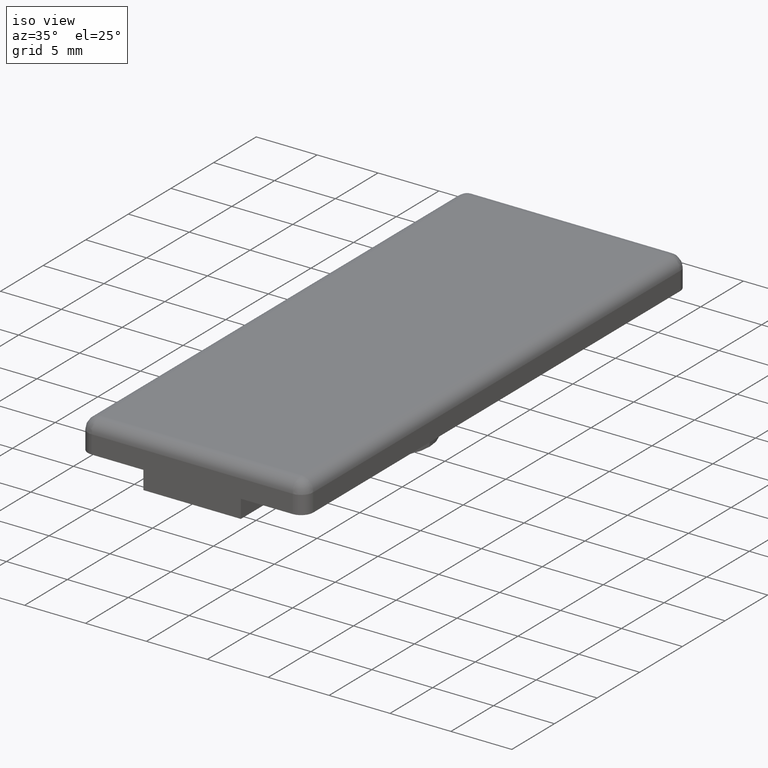
[diagram: clean part render]
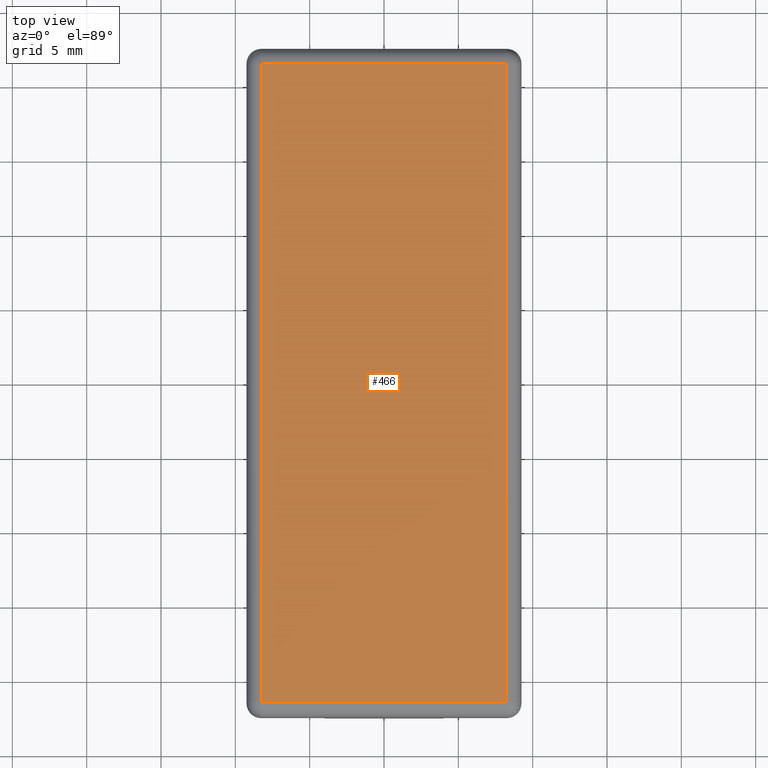
[diagram: tour spotlight — one face highlighted and labeled with its STEP entity id]
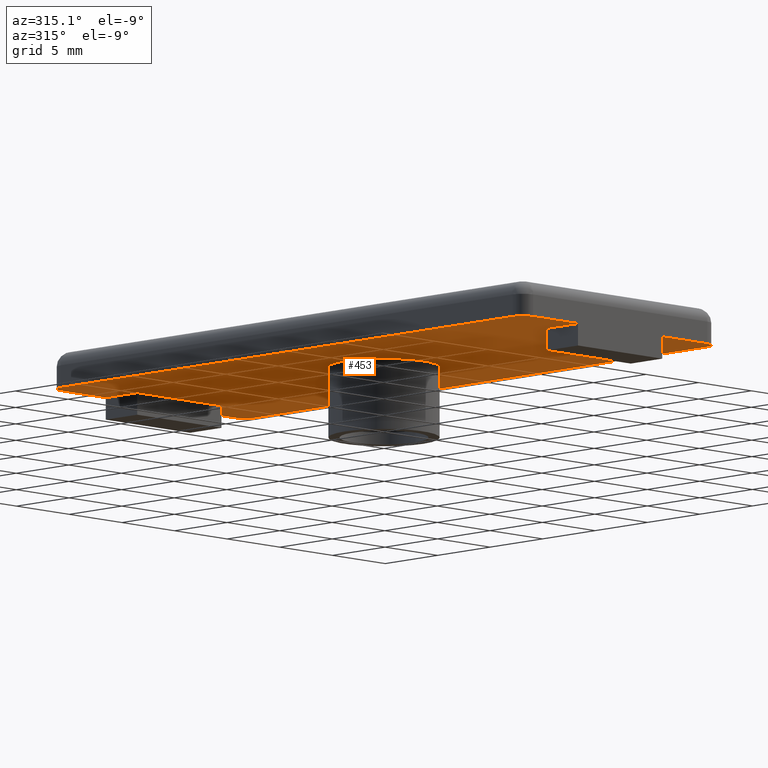
[diagram: tour spotlight — one face highlighted and labeled with its STEP entity id]
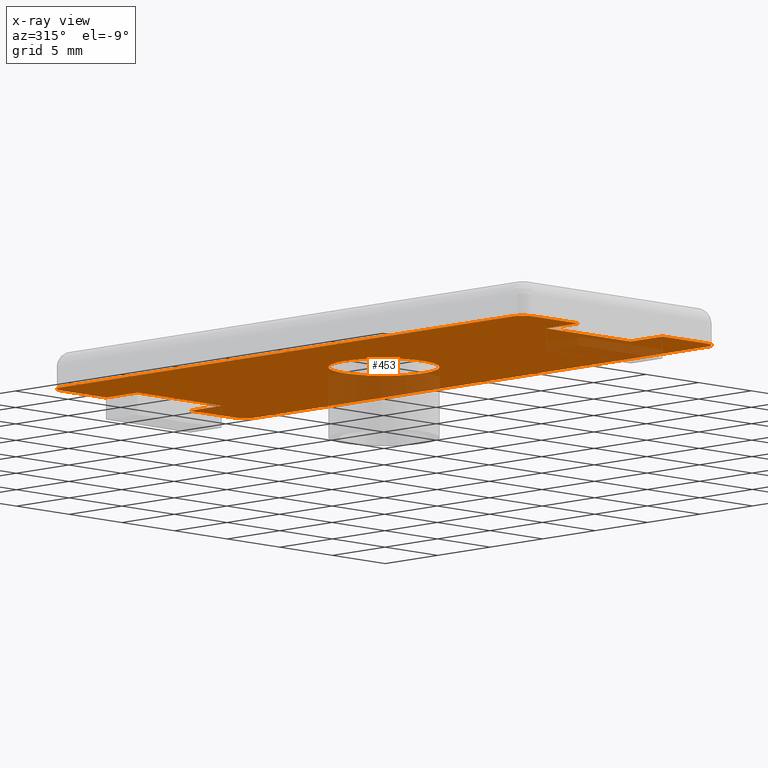
[diagram: x-ray of the same camera — body ghosted, this tour face saturated]
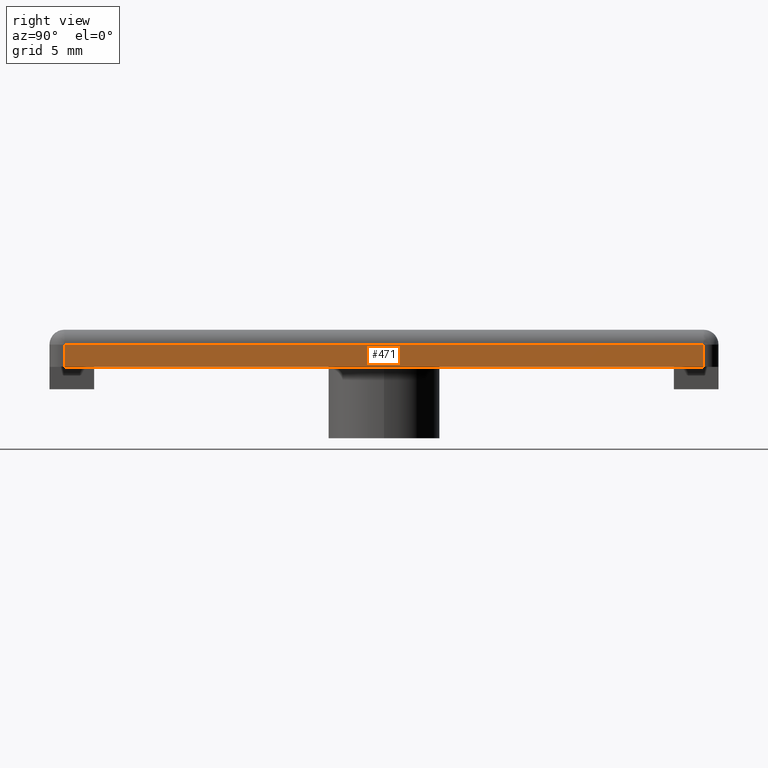
[diagram: tour spotlight — one face highlighted and labeled with its STEP entity id]
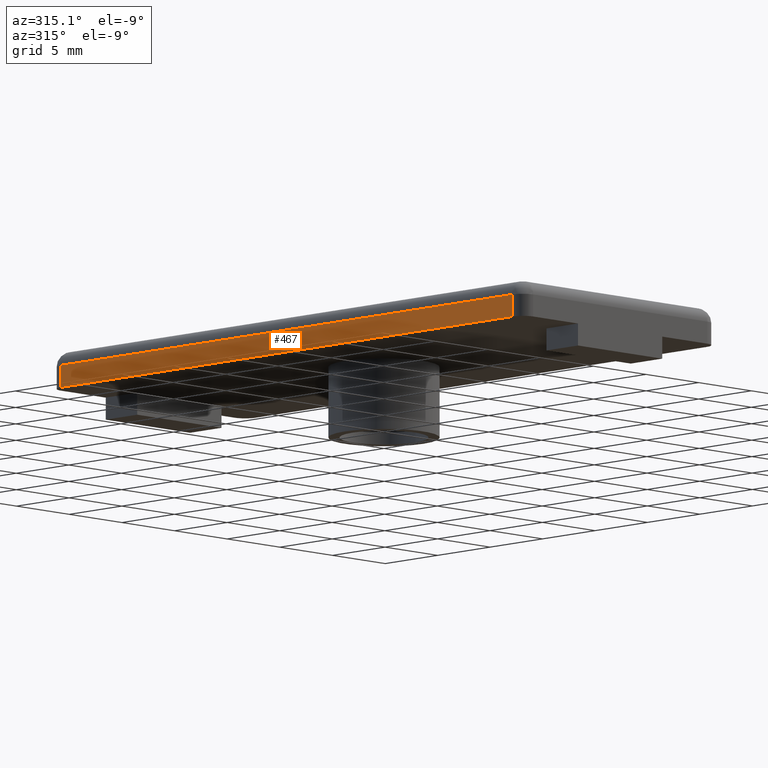
[diagram: tour spotlight — one face highlighted and labeled with its STEP entity id]
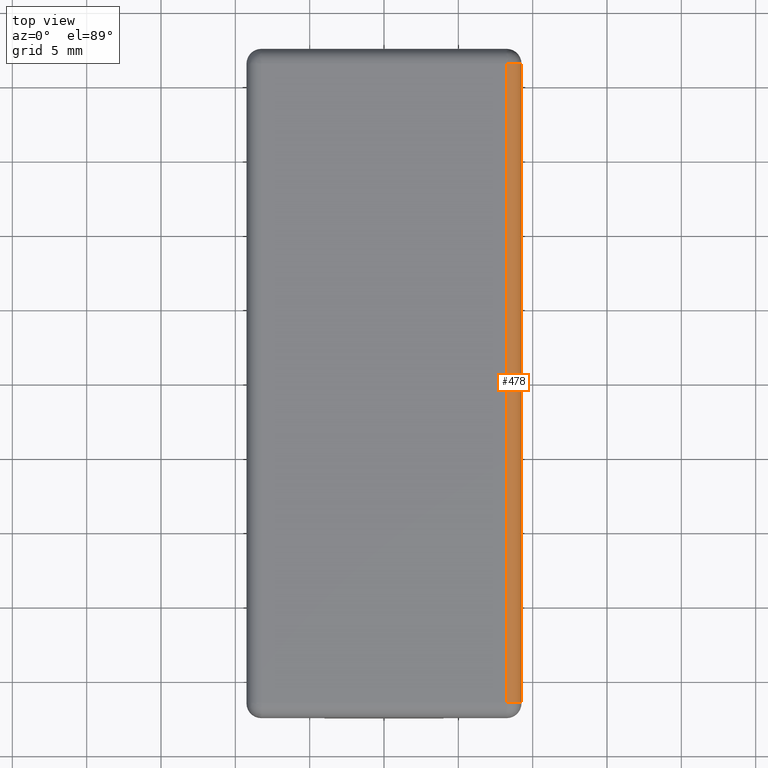
[diagram: tour spotlight — one face highlighted and labeled with its STEP entity id]
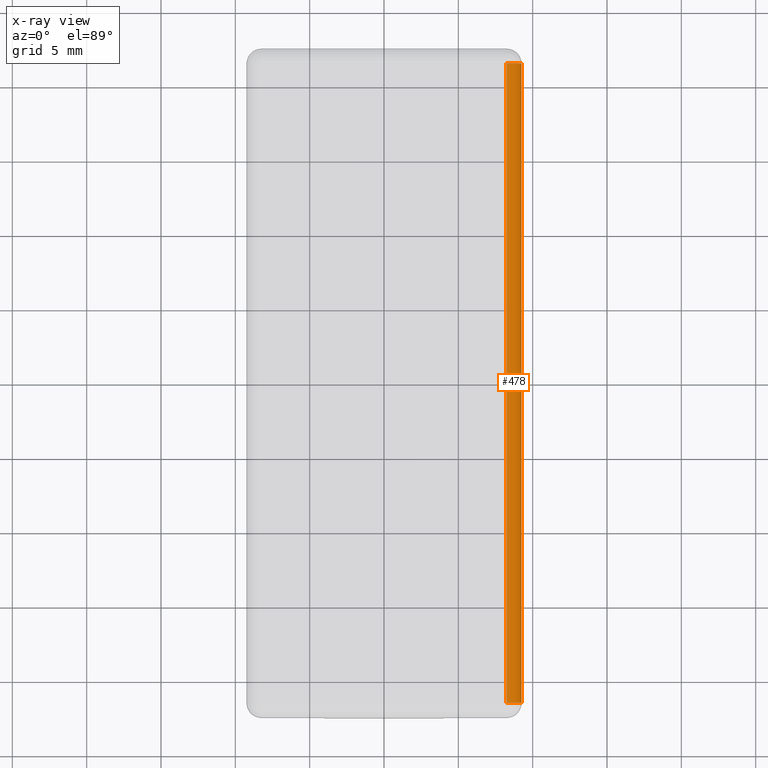
[diagram: x-ray of the same camera — body ghosted, this tour face saturated]
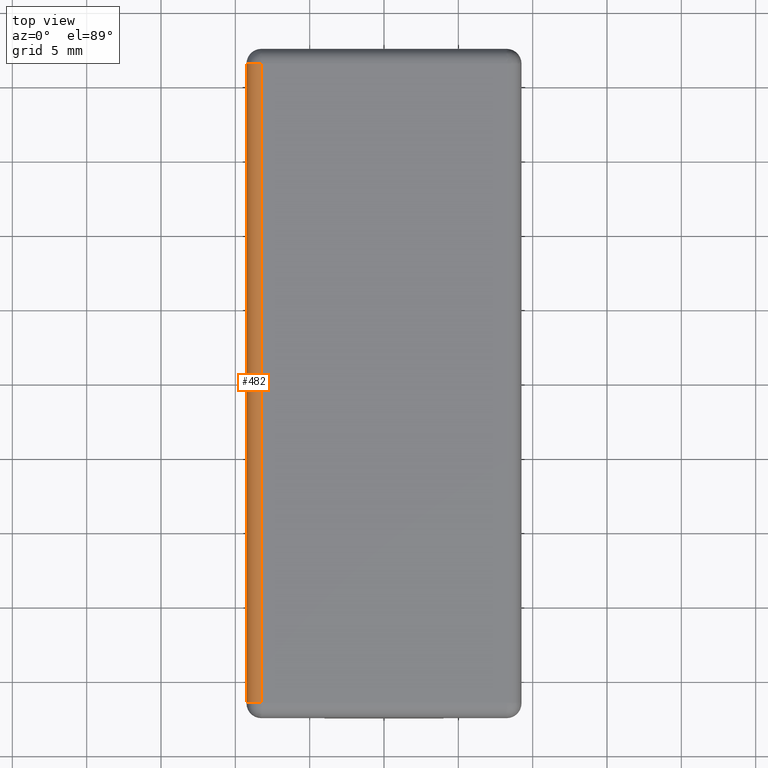
[diagram: tour spotlight — one face highlighted and labeled with its STEP entity id]
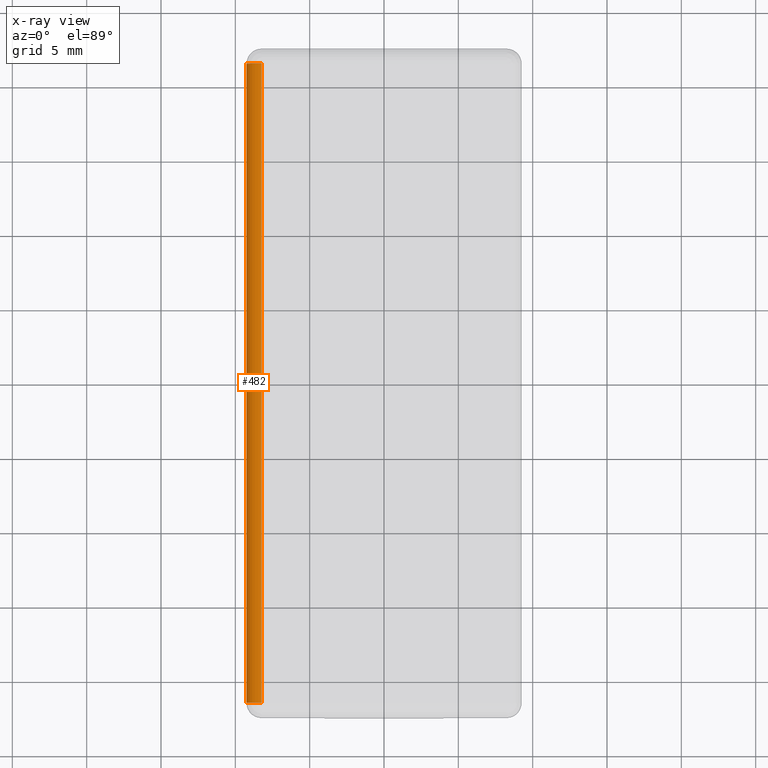
[diagram: x-ray of the same camera — body ghosted, this tour face saturated]
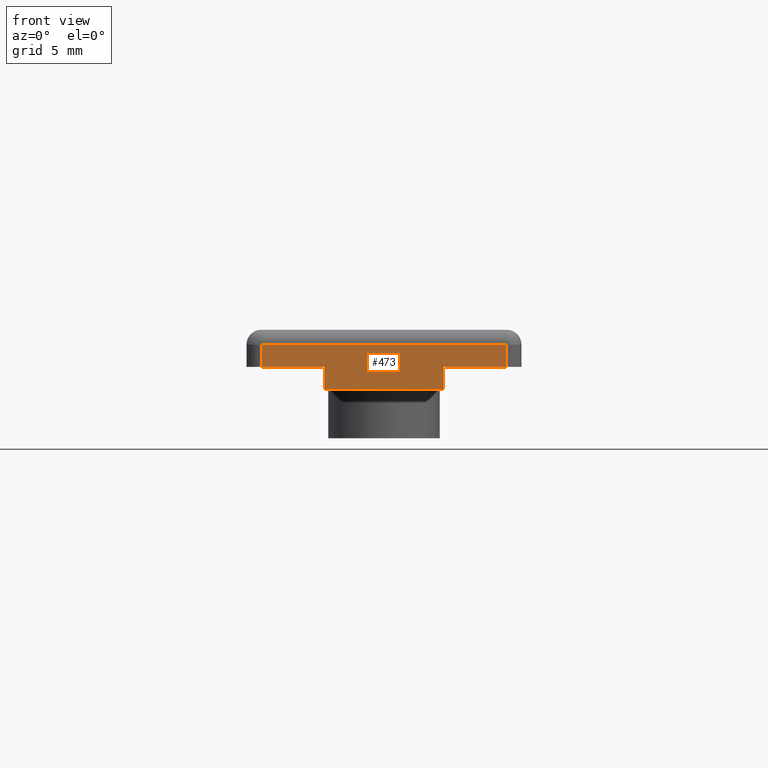
[diagram: tour spotlight — one face highlighted and labeled with its STEP entity id]
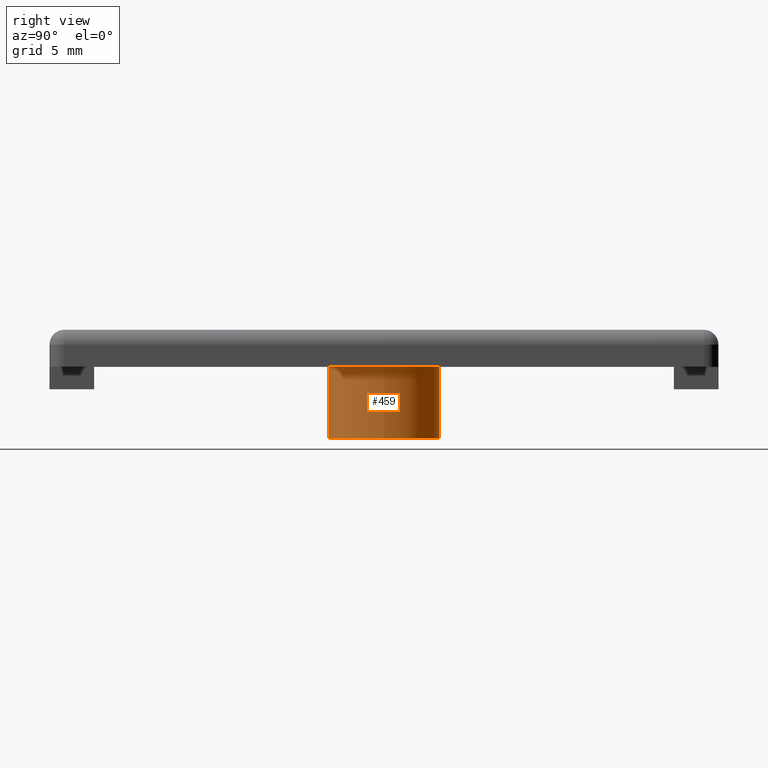
[diagram: tour spotlight — one face highlighted and labeled with its STEP entity id]
A machine part: a face-by-face anatomy tour. The part has 30 B-rep faces; the first image is the clean iso view, then the 8 largest visible faces are spotlighted one at a time (largest first), each with its STEP entity span.

Face 1 — top view, entity #466. In plain terms, the highlighted planar face has unit normal (0, 0, -1).
Definition (entity closure, byte-faithful):
#46=FACE_OUTER_BOUND('',#80,.T.);
#80=EDGE_LOOP('',(#365,#366,#367,#368));
#125=LINE('',#750,#169);
#126=LINE('',#752,#170);
#127=LINE('',#754,#171);
#128=LINE('',#755,#172);
#169=VECTOR('',#605,42.999999999824);
#170=VECTOR('',#606,16.4999999999304);
#171=VECTOR('',#607,42.999999999824);
#172=VECTOR('',#608,16.4999999999341);
#233=VERTEX_POINT('',#748);
#234=VERTEX_POINT('',#749);
#235=VERTEX_POINT('',#751);
#236=VERTEX_POINT('',#753);
#281=EDGE_CURVE('',#233,#234,#125,.T.);
#282=EDGE_CURVE('',#235,#233,#126,.T.);
#283=EDGE_CURVE('',#236,#235,#127,.T.);
#284=EDGE_CURVE('',#234,#236,#128,.T.);
#365=ORIENTED_EDGE('',*,*,#281,.F.);
#366=ORIENTED_EDGE('',*,*,#282,.F.);
#367=ORIENTED_EDGE('',*,*,#283,.F.);
#368=ORIENTED_EDGE('',*,*,#284,.F.);
#448=PLANE('',#506);
#466=ADVANCED_FACE('',(#46),#448,.F.);
#506=AXIS2_PLACEMENT_3D('',#747,#603,#604);
#603=DIRECTION('center_axis',(0.,0.,-1.));
#604=DIRECTION('ref_axis',(-1.,0.,0.));
#605=DIRECTION('',(0.,-1.,0.));
#606=DIRECTION('',(1.,0.,0.));
#607=DIRECTION('',(0.,1.,0.));
#608=DIRECTION('',(-1.,0.,0.));
#747=CARTESIAN_POINT('Origin',(11.1000047315933,-27.0000047315743,2.5));
#748=CARTESIAN_POINT('',(8.24999999996317,21.4999999999141,2.5));
#749=CARTESIAN_POINT('',(8.2499999999668,-21.49999999991,2.5));
#750=CARTESIAN_POINT('',(8.24999999996317,21.4999999999141,2.5));
#751=CARTESIAN_POINT('',(-8.24999999996726,21.49999999991,2.5));
#752=CARTESIAN_POINT('',(-8.24999999996726,21.49999999991,2.5));
#753=CARTESIAN_POINT('',(-8.24999999996726,-21.4999999999141,2.5));
#754=CARTESIAN_POINT('',(-8.24999999996317,-21.4999999999141,2.5));
#755=CARTESIAN_POINT('',(8.2499999999668,-21.49999999991,2.5));

Face 2 — auxiliary view, entity #453. An x-ray twin of the same camera follows (body ghosted, this face saturated) — the face is partly hidden behind the body. In plain terms, the highlighted planar face has unit normal (0, 0, -1).
Definition (entity closure, byte-faithful):
#29=FACE_BOUND('',#64,.T.);
#33=FACE_OUTER_BOUND('',#63,.T.);
#63=EDGE_LOOP('',(#309,#310,#311,#312,#313,#314,#315,#316,#317,#318,#319,
#320,#321,#322,#323,#324));
#64=EDGE_LOOP('',(#325));
#97=LINE('',#675,#141);
#98=LINE('',#677,#142);
#99=LINE('',#679,#143);
#100=LINE('',#681,#144);
#101=LINE('',#683,#145);
#102=LINE('',#687,#146);
#103=LINE('',#691,#147);
#104=LINE('',#693,#148);
#105=LINE('',#695,#149);
#106=LINE('',#697,#150);
#107=LINE('',#699,#151);
#108=LINE('',#702,#152);
#141=VECTOR('',#537,4.24999999998272);
#142=VECTOR('',#538,2.99999999998818);
#143=VECTOR('',#539,7.99999999996817);
#144=VECTOR('',#540,2.99999999998818);
#145=VECTOR('',#541,4.24999999998317);
#146=VECTOR('',#544,42.9999999998281);
#147=VECTOR('',#547,4.24999999998317);
#148=VECTOR('',#548,2.99999999998771);
#149=VECTOR('',#549,7.99999999996817);
#150=VECTOR('',#550,2.99999999998771);
#151=VECTOR('',#551,4.24999999998272);
#152=VECTOR('',#554,42.9999999998281);
#185=CIRCLE('',#486,0.999999999996);
#186=CIRCLE('',#487,0.999999999996);
#187=CIRCLE('',#488,0.999999999996);
#188=CIRCLE('',#489,0.999999999996);
#189=CIRCLE('',#490,3.749999999985);
#205=VERTEX_POINT('',#671);
#206=VERTEX_POINT('',#672);
#207=VERTEX_POINT('',#674);
#208=VERTEX_POINT('',#676);
#209=VERTEX_POINT('',#678);
#210=VERTEX_POINT('',#680);
#211=VERTEX_POINT('',#682);
#212=VERTEX_POINT('',#684);
#213=VERTEX_POINT('',#686);
#214=VERTEX_POINT('',#688);
#215=VERTEX_POINT('',#690);
#216=VERTEX_POINT('',#692);
#217=VERTEX_POINT('',#694);
#218=VERTEX_POINT('',#696);
#219=VERTEX_POINT('',#698);
#220=VERTEX_POINT('',#700);
#221=VERTEX_POINT('',#703);
#245=EDGE_CURVE('',#205,#206,#185,.T.);
#246=EDGE_CURVE('',#206,#207,#97,.T.);
#247=EDGE_CURVE('',#208,#207,#98,.T.);
#248=EDGE_CURVE('',#209,#208,#99,.T.);
#249=EDGE_CURVE('',#210,#209,#100,.T.);
#250=EDGE_CURVE('',#210,#211,#101,.T.);
#251=EDGE_CURVE('',#211,#212,#186,.T.);
#252=EDGE_CURVE('',#212,#213,#102,.T.);
#253=EDGE_CURVE('',#213,#214,#187,.T.);
#254=EDGE_CURVE('',#214,#215,#103,.T.);
#255=EDGE_CURVE('',#216,#215,#104,.T.);
#256=EDGE_CURVE('',#217,#216,#105,.T.);
#257=EDGE_CURVE('',#218,#217,#106,.T.);
#258=EDGE_CURVE('',#218,#219,#107,.T.);
#259=EDGE_CURVE('',#219,#220,#188,.T.);
#260=EDGE_CURVE('',#220,#205,#108,.T.);
#261=EDGE_CURVE('',#221,#221,#189,.T.);
#309=ORIENTED_EDGE('',*,*,#245,.T.);
#310=ORIENTED_EDGE('',*,*,#246,.T.);
#311=ORIENTED_EDGE('',*,*,#247,.F.);
#312=ORIENTED_EDGE('',*,*,#248,.F.);
#313=ORIENTED_EDGE('',*,*,#249,.F.);
#314=ORIENTED_EDGE('',*,*,#250,.T.);
#315=ORIENTED_EDGE('',*,*,#251,.T.);
#316=ORIENTED_EDGE('',*,*,#252,.T.);
#317=ORIENTED_EDGE('',*,*,#253,.T.);
#318=ORIENTED_EDGE('',*,*,#254,.T.);
#319=ORIENTED_EDGE('',*,*,#255,.F.);
#320=ORIENTED_EDGE('',*,*,#256,.F.);
#321=ORIENTED_EDGE('',*,*,#257,.F.);
#322=ORIENTED_EDGE('',*,*,#258,.T.);
#323=ORIENTED_EDGE('',*,*,#259,.T.);
#324=ORIENTED_EDGE('',*,*,#260,.T.);
#325=ORIENTED_EDGE('',*,*,#261,.F.);
#437=PLANE('',#485);
#453=ADVANCED_FACE('',(#33,#29),#437,.T.);
#485=AXIS2_PLACEMENT_3D('',#670,#533,#534);
#486=AXIS2_PLACEMENT_3D('',#673,#535,#536);
#487=AXIS2_PLACEMENT_3D('',#685,#542,#543);
#488=AXIS2_PLACEMENT_3D('',#689,#545,#546);
#489=AXIS2_PLACEMENT_3D('',#701,#552,#553);
#490=AXIS2_PLACEMENT_3D('',#704,#555,#556);
#533=DIRECTION('center_axis',(0.,0.,-1.));
#534=DIRECTION('ref_axis',(-1.,0.,0.));
#535=DIRECTION('center_axis',(0.,0.,-1.));
#536=DIRECTION('ref_axis',(-1.,0.,0.));
#537=DIRECTION('',(-1.,0.,0.));
#538=DIRECTION('',(0.,-1.,0.));
#539=DIRECTION('',(1.,0.,0.));
#540=DIRECTION('',(0.,1.,0.));
#541=DIRECTION('',(-1.,0.,0.));
#542=DIRECTION('center_axis',(0.,0.,-1.));
#543=DIRECTION('ref_axis',(-1.,0.,0.));
#544=DIRECTION('',(0.,1.,0.));
#545=DIRECTION('center_axis',(0.,0.,-1.));
#546=DIRECTION('ref_axis',(-1.,0.,0.));
#547=DIRECTION('',(1.,0.,0.));
#548=DIRECTION('',(0.,1.,0.));
#549=DIRECTION('',(-1.,0.,0.));
#550=DIRECTION('',(0.,-1.,0.));
#551=DIRECTION('',(1.,0.,0.));
#552=DIRECTION('center_axis',(0.,0.,-1.));
#553=DIRECTION('ref_axis',(-1.,0.,0.));
#554=DIRECTION('',(0.,-1.,0.));
#555=DIRECTION('center_axis',(0.,0.,-1.));
#556=DIRECTION('ref_axis',(-1.,0.,0.));
#670=CARTESIAN_POINT('Origin',(11.1000047315933,-27.0000047315743,1.359359E-15));
#671=CARTESIAN_POINT('',(9.24999999996271,-21.4999999999141,1.132798E-15));
#672=CARTESIAN_POINT('',(8.2499999999668,-22.49999999991,1.010334E-15));
#673=CARTESIAN_POINT('Origin',(8.2499999999668,-21.4999999999141,1.010334E-15));
#674=CARTESIAN_POINT('',(3.99999999998409,-22.49999999991,4.898587E-16));
#675=CARTESIAN_POINT('',(8.2499999999668,-22.49999999991,1.010334E-15));
#676=CARTESIAN_POINT('',(3.99999999998409,-19.4999999999218,4.898587E-16));
#677=CARTESIAN_POINT('',(3.99999999998409,-19.4999999999218,4.898587E-16));
#678=CARTESIAN_POINT('',(-3.99999999998409,-19.4999999999218,-4.898587E-16));
#679=CARTESIAN_POINT('',(-3.99999999998409,-19.4999999999218,-4.898587E-16));
#680=CARTESIAN_POINT('',(-3.99999999998409,-22.49999999991,-4.898587E-16));
#681=CARTESIAN_POINT('',(-3.99999999998409,-22.49999999991,-4.898587E-16));
#682=CARTESIAN_POINT('',(-8.24999999996726,-22.49999999991,-1.010334E-15));
#683=CARTESIAN_POINT('',(-3.99999999998409,-22.49999999991,-4.898587E-16));
#684=CARTESIAN_POINT('',(-9.24999999996317,-21.4999999999141,-1.132798E-15));
#685=CARTESIAN_POINT('Origin',(-8.24999999996726,-21.4999999999141,-1.010334E-15));
#686=CARTESIAN_POINT('',(-9.24999999996317,21.4999999999141,-1.132798E-15));
#687=CARTESIAN_POINT('',(-9.24999999996317,-21.4999999999141,-1.132798E-15));
#688=CARTESIAN_POINT('',(-8.24999999996726,22.49999999991,-1.010334E-15));
#689=CARTESIAN_POINT('Origin',(-8.24999999996726,21.4999999999141,-1.010334E-15));
#690=CARTESIAN_POINT('',(-3.99999999998409,22.49999999991,-4.898587E-16));
#691=CARTESIAN_POINT('',(-8.24999999996726,22.49999999991,-1.010334E-15));
#692=CARTESIAN_POINT('',(-3.99999999998409,19.4999999999222,-4.898587E-16));
#693=CARTESIAN_POINT('',(-3.99999999998409,19.4999999999222,-4.898587E-16));
#694=CARTESIAN_POINT('',(3.99999999998409,19.4999999999222,4.898587E-16));
#695=CARTESIAN_POINT('',(3.99999999998409,19.4999999999222,4.898587E-16));
#696=CARTESIAN_POINT('',(3.99999999998409,22.49999999991,4.898587E-16));
#697=CARTESIAN_POINT('',(3.99999999998409,22.49999999991,4.898587E-16));
#698=CARTESIAN_POINT('',(8.2499999999668,22.49999999991,1.010334E-15));
#699=CARTESIAN_POINT('',(3.99999999998409,22.49999999991,4.898587E-16));
#700=CARTESIAN_POINT('',(9.24999999996317,21.4999999999141,1.132798E-15));
#701=CARTESIAN_POINT('Origin',(8.2499999999668,21.4999999999141,1.010334E-15));
#702=CARTESIAN_POINT('',(9.24999999996317,21.4999999999141,1.132798E-15));
#703=CARTESIAN_POINT('',(3.749999999985,0.,4.592425E-16));
#704=CARTESIAN_POINT('Origin',(0.,0.,0.));

Face 3 — right view, entity #471. In plain terms, the highlighted planar face has unit normal (-1, 0, 0).
Definition (entity closure, byte-faithful):
#51=FACE_OUTER_BOUND('',#85,.T.);
#85=EDGE_LOOP('',(#389,#390,#391,#392));
#108=LINE('',#702,#152);
#135=LINE('',#773,#179);
#136=LINE('',#776,#180);
#137=LINE('',#777,#181);
#152=VECTOR('',#554,42.9999999998281);
#179=VECTOR('',#627,1.5);
#180=VECTOR('',#630,42.9999999998281);
#181=VECTOR('',#631,1.5);
#205=VERTEX_POINT('',#671);
#220=VERTEX_POINT('',#700);
#241=VERTEX_POINT('',#771);
#242=VERTEX_POINT('',#775);
#260=EDGE_CURVE('',#220,#205,#108,.T.);
#293=EDGE_CURVE('',#220,#241,#135,.T.);
#294=EDGE_CURVE('',#241,#242,#136,.T.);
#295=EDGE_CURVE('',#205,#242,#137,.T.);
#389=ORIENTED_EDGE('',*,*,#260,.F.);
#390=ORIENTED_EDGE('',*,*,#293,.T.);
#391=ORIENTED_EDGE('',*,*,#294,.T.);
#392=ORIENTED_EDGE('',*,*,#295,.F.);
#451=PLANE('',#513);
#471=ADVANCED_FACE('',(#51),#451,.F.);
#513=AXIS2_PLACEMENT_3D('',#774,#628,#629);
#554=DIRECTION('',(0.,-1.,0.));
#627=DIRECTION('',(0.,0.,1.));
#628=DIRECTION('center_axis',(-1.,0.,0.));
#629=DIRECTION('ref_axis',(0.,0.,1.));
#630=DIRECTION('',(0.,-1.,0.));
#631=DIRECTION('',(0.,0.,1.));
#671=CARTESIAN_POINT('',(9.24999999996271,-21.4999999999141,1.132798E-15));
#700=CARTESIAN_POINT('',(9.24999999996317,21.4999999999141,1.132798E-15));
#702=CARTESIAN_POINT('',(9.24999999996317,21.4999999999141,1.132798E-15));
#771=CARTESIAN_POINT('',(9.24999999996317,21.4999999999141,1.5));
#773=CARTESIAN_POINT('',(9.24999999996317,21.4999999999141,1.132798E-15));
#774=CARTESIAN_POINT('Origin',(9.24999999996317,21.4999999999141,1.132798E-15));
#775=CARTESIAN_POINT('',(9.24999999996281,-21.4999999999141,1.5));
#776=CARTESIAN_POINT('',(9.24999999996317,21.4999999999141,1.5));
#777=CARTESIAN_POINT('',(9.24999999996271,-21.4999999999141,1.132798E-15));

Face 4 — auxiliary view, entity #467. In plain terms, the highlighted planar face has unit normal (1, 0, 0).
Definition (entity closure, byte-faithful):
#47=FACE_OUTER_BOUND('',#81,.T.);
#81=EDGE_LOOP('',(#369,#370,#371,#372));
#102=LINE('',#687,#146);
#129=LINE('',#758,#173);
#130=LINE('',#760,#174);
#131=LINE('',#761,#175);
#146=VECTOR('',#544,42.9999999998281);
#173=VECTOR('',#611,1.5);
#174=VECTOR('',#612,42.9999999998281);
#175=VECTOR('',#613,1.5);
#212=VERTEX_POINT('',#684);
#213=VERTEX_POINT('',#686);
#237=VERTEX_POINT('',#757);
#238=VERTEX_POINT('',#759);
#252=EDGE_CURVE('',#212,#213,#102,.T.);
#285=EDGE_CURVE('',#212,#237,#129,.T.);
#286=EDGE_CURVE('',#237,#238,#130,.T.);
#287=EDGE_CURVE('',#213,#238,#131,.T.);
#369=ORIENTED_EDGE('',*,*,#285,.T.);
#370=ORIENTED_EDGE('',*,*,#286,.T.);
#371=ORIENTED_EDGE('',*,*,#287,.F.);
#372=ORIENTED_EDGE('',*,*,#252,.F.);
#449=PLANE('',#507);
#467=ADVANCED_FACE('',(#47),#449,.F.);
#507=AXIS2_PLACEMENT_3D('',#756,#609,#610);
#544=DIRECTION('',(0.,1.,0.));
#609=DIRECTION('center_axis',(1.,0.,0.));
#610=DIRECTION('ref_axis',(0.,0.,-1.));
#611=DIRECTION('',(0.,0.,1.));
#612=DIRECTION('',(0.,1.,0.));
#613=DIRECTION('',(0.,0.,1.));
#684=CARTESIAN_POINT('',(-9.24999999996317,-21.4999999999141,-1.132798E-15));
#686=CARTESIAN_POINT('',(-9.24999999996317,21.4999999999141,-1.132798E-15));
#687=CARTESIAN_POINT('',(-9.24999999996317,-21.4999999999141,-1.132798E-15));
#756=CARTESIAN_POINT('Origin',(-9.24999999996317,-21.4999999999141,-1.132798E-15));
#757=CARTESIAN_POINT('',(-9.24999999996326,-21.4999999999141,1.5));
#758=CARTESIAN_POINT('',(-9.24999999996317,-21.4999999999141,-1.132798E-15));
#759=CARTESIAN_POINT('',(-9.24999999996326,21.4999999999141,1.5));
#760=CARTESIAN_POINT('',(-9.24999999996317,-21.4999999999141,1.5));
#761=CARTESIAN_POINT('',(-9.24999999996317,21.4999999999141,-1.132798E-15));

Face 5 — top view, entity #478. An x-ray twin of the same camera follows (body ghosted, this face saturated) — the face is partly hidden behind the body. In plain terms, the highlighted cylindrical surface (edge-blend (fillet) strip) has radius 1 mm, axis along (0, -1, 0).
Definition (entity closure, byte-faithful):
#26=CYLINDRICAL_SURFACE('',#524,1.);
#58=FACE_OUTER_BOUND('',#92,.T.);
#92=EDGE_LOOP('',(#419,#420,#421,#422));
#125=LINE('',#750,#169);
#136=LINE('',#776,#180);
#169=VECTOR('',#605,42.999999999824);
#180=VECTOR('',#630,42.9999999998281);
#200=CIRCLE('',#523,0.999999999996);
#201=CIRCLE('',#525,1.);
#233=VERTEX_POINT('',#748);
#234=VERTEX_POINT('',#749);
#241=VERTEX_POINT('',#771);
#242=VERTEX_POINT('',#775);
#281=EDGE_CURVE('',#233,#234,#125,.T.);
#294=EDGE_CURVE('',#241,#242,#136,.T.);
#304=EDGE_CURVE('',#242,#234,#200,.T.);
#305=EDGE_CURVE('',#241,#233,#201,.T.);
#419=ORIENTED_EDGE('',*,*,#294,.F.);
#420=ORIENTED_EDGE('',*,*,#305,.T.);
#421=ORIENTED_EDGE('',*,*,#281,.T.);
#422=ORIENTED_EDGE('',*,*,#304,.F.);
#478=ADVANCED_FACE('',(#58),#26,.T.);
#523=AXIS2_PLACEMENT_3D('',#946,#653,#654);
#524=AXIS2_PLACEMENT_3D('',#947,#655,#656);
#525=AXIS2_PLACEMENT_3D('',#948,#657,#658);
#605=DIRECTION('',(0.,-1.,0.));
#630=DIRECTION('',(0.,-1.,0.));
#653=DIRECTION('center_axis',(0.,-1.,0.));
#654=DIRECTION('ref_axis',(1.,0.,0.));
#655=DIRECTION('center_axis',(0.,-1.,0.));
#656=DIRECTION('ref_axis',(1.,0.,0.));
#657=DIRECTION('center_axis',(0.,-1.,0.));
#658=DIRECTION('ref_axis',(1.,0.,0.));
#748=CARTESIAN_POINT('',(8.24999999996317,21.4999999999141,2.5));
#749=CARTESIAN_POINT('',(8.2499999999668,-21.49999999991,2.5));
#750=CARTESIAN_POINT('',(8.24999999996317,21.4999999999141,2.5));
#771=CARTESIAN_POINT('',(9.24999999996317,21.4999999999141,1.5));
#775=CARTESIAN_POINT('',(9.24999999996281,-21.4999999999141,1.5));
#776=CARTESIAN_POINT('',(9.24999999996317,21.4999999999141,1.5));
#946=CARTESIAN_POINT('Origin',(8.2499999999668,-21.4999999999141,1.5));
#947=CARTESIAN_POINT('Origin',(8.24999999996317,21.4999999999141,1.5));
#948=CARTESIAN_POINT('Origin',(8.24999999996317,21.4999999999141,1.5));

Face 6 — top view, entity #482. An x-ray twin of the same camera follows (body ghosted, this face saturated) — the face is partly hidden behind the body. In plain terms, the highlighted cylindrical surface (edge-blend (fillet) strip) has radius 1 mm, axis along (0, 1, 0).
Definition (entity closure, byte-faithful):
#28=CYLINDRICAL_SURFACE('',#530,1.);
#62=FACE_OUTER_BOUND('',#96,.T.);
#96=EDGE_LOOP('',(#433,#434,#435,#436));
#127=LINE('',#754,#171);
#130=LINE('',#760,#174);
#171=VECTOR('',#607,42.999999999824);
#174=VECTOR('',#612,42.9999999998281);
#198=CIRCLE('',#520,1.);
#204=CIRCLE('',#529,0.999999999996);
#235=VERTEX_POINT('',#751);
#236=VERTEX_POINT('',#753);
#237=VERTEX_POINT('',#757);
#238=VERTEX_POINT('',#759);
#283=EDGE_CURVE('',#236,#235,#127,.T.);
#286=EDGE_CURVE('',#237,#238,#130,.T.);
#302=EDGE_CURVE('',#237,#236,#198,.T.);
#308=EDGE_CURVE('',#238,#235,#204,.T.);
#433=ORIENTED_EDGE('',*,*,#302,.T.);
#434=ORIENTED_EDGE('',*,*,#283,.T.);
#435=ORIENTED_EDGE('',*,*,#308,.F.);
#436=ORIENTED_EDGE('',*,*,#286,.F.);
#482=ADVANCED_FACE('',(#62),#28,.T.);
#520=AXIS2_PLACEMENT_3D('',#866,#647,#648);
#529=AXIS2_PLACEMENT_3D('',#1106,#665,#666);
#530=AXIS2_PLACEMENT_3D('',#1107,#667,#668);
#607=DIRECTION('',(0.,1.,0.));
#612=DIRECTION('',(0.,1.,0.));
#647=DIRECTION('center_axis',(0.,1.,0.));
#648=DIRECTION('ref_axis',(-1.,0.,0.));
#665=DIRECTION('center_axis',(0.,1.,0.));
#666=DIRECTION('ref_axis',(-1.,0.,0.));
#667=DIRECTION('center_axis',(0.,1.,0.));
#668=DIRECTION('ref_axis',(-1.,0.,0.));
#751=CARTESIAN_POINT('',(-8.24999999996726,21.49999999991,2.5));
#753=CARTESIAN_POINT('',(-8.24999999996726,-21.4999999999141,2.5));
#754=CARTESIAN_POINT('',(-8.24999999996317,-21.4999999999141,2.5));
#757=CARTESIAN_POINT('',(-9.24999999996326,-21.4999999999141,1.5));
#759=CARTESIAN_POINT('',(-9.24999999996326,21.4999999999141,1.5));
#760=CARTESIAN_POINT('',(-9.24999999996317,-21.4999999999141,1.5));
#866=CARTESIAN_POINT('Origin',(-8.24999999996317,-21.4999999999141,1.5));
#1106=CARTESIAN_POINT('Origin',(-8.24999999996726,21.4999999999141,1.5));
#1107=CARTESIAN_POINT('Origin',(-8.24999999996317,-21.4999999999141,1.5));

Face 7 — front view, entity #473. In plain terms, the highlighted planar face has unit normal (0, 1, 0).
Definition (entity closure, byte-faithful):
#53=FACE_OUTER_BOUND('',#87,.T.);
#87=EDGE_LOOP('',(#397,#398,#399,#400,#401,#402,#403,#404));
#97=LINE('',#675,#141);
#101=LINE('',#683,#145);
#109=LINE('',#710,#153);
#114=LINE('',#720,#158);
#116=LINE('',#723,#160);
#138=LINE('',#781,#182);
#139=LINE('',#784,#183);
#140=LINE('',#785,#184);
#141=VECTOR('',#537,4.24999999998272);
#145=VECTOR('',#541,4.24999999998317);
#153=VECTOR('',#563,1.5);
#158=VECTOR('',#572,1.5);
#160=VECTOR('',#576,7.99999999996817);
#182=VECTOR('',#636,1.5);
#183=VECTOR('',#639,16.4999999999341);
#184=VECTOR('',#640,1.5);
#206=VERTEX_POINT('',#672);
#207=VERTEX_POINT('',#674);
#210=VERTEX_POINT('',#680);
#211=VERTEX_POINT('',#682);
#223=VERTEX_POINT('',#709);
#226=VERTEX_POINT('',#719);
#243=VERTEX_POINT('',#779);
#244=VERTEX_POINT('',#783);
#246=EDGE_CURVE('',#206,#207,#97,.T.);
#250=EDGE_CURVE('',#210,#211,#101,.T.);
#263=EDGE_CURVE('',#210,#223,#109,.T.);
#268=EDGE_CURVE('',#207,#226,#114,.T.);
#270=EDGE_CURVE('',#226,#223,#116,.T.);
#297=EDGE_CURVE('',#206,#243,#138,.T.);
#298=EDGE_CURVE('',#243,#244,#139,.T.);
#299=EDGE_CURVE('',#211,#244,#140,.T.);
#397=ORIENTED_EDGE('',*,*,#297,.T.);
#398=ORIENTED_EDGE('',*,*,#298,.T.);
#399=ORIENTED_EDGE('',*,*,#299,.F.);
#400=ORIENTED_EDGE('',*,*,#250,.F.);
#401=ORIENTED_EDGE('',*,*,#263,.T.);
#402=ORIENTED_EDGE('',*,*,#270,.F.);
#403=ORIENTED_EDGE('',*,*,#268,.F.);
#404=ORIENTED_EDGE('',*,*,#246,.F.);
#452=PLANE('',#516);
#473=ADVANCED_FACE('',(#53),#452,.F.);
#516=AXIS2_PLACEMENT_3D('',#782,#637,#638);
#537=DIRECTION('',(-1.,0.,0.));
#541=DIRECTION('',(-1.,0.,0.));
#563=DIRECTION('',(0.,0.,-1.));
#572=DIRECTION('',(0.,0.,-1.));
#576=DIRECTION('',(-1.,0.,0.));
#636=DIRECTION('',(0.,0.,1.));
#637=DIRECTION('center_axis',(0.,1.,0.));
#638=DIRECTION('ref_axis',(0.,0.,1.));
#639=DIRECTION('',(-1.,0.,0.));
#640=DIRECTION('',(0.,0.,1.));
#672=CARTESIAN_POINT('',(8.2499999999668,-22.49999999991,1.010334E-15));
#674=CARTESIAN_POINT('',(3.99999999998409,-22.49999999991,4.898587E-16));
#675=CARTESIAN_POINT('',(8.2499999999668,-22.49999999991,1.010334E-15));
#680=CARTESIAN_POINT('',(-3.99999999998409,-22.49999999991,-4.898587E-16));
#682=CARTESIAN_POINT('',(-8.24999999996726,-22.49999999991,-1.010334E-15));
#683=CARTESIAN_POINT('',(-3.99999999998409,-22.49999999991,-4.898587E-16));
#709=CARTESIAN_POINT('',(-3.99999999998409,-22.49999999991,-1.5));
#710=CARTESIAN_POINT('',(-3.99999999998409,-22.49999999991,-4.898587E-16));
#719=CARTESIAN_POINT('',(3.99999999998409,-22.49999999991,-1.5));
#720=CARTESIAN_POINT('',(3.99999999998409,-22.49999999991,4.898587E-16));
#723=CARTESIAN_POINT('',(3.99999999998409,-22.49999999991,-1.5));
#779=CARTESIAN_POINT('',(8.2499999999668,-22.49999999991,1.5));
#781=CARTESIAN_POINT('',(8.2499999999668,-22.49999999991,1.010334E-15));
#782=CARTESIAN_POINT('Origin',(8.25003937008478,-22.49999999991,-1.50003937007932));
#783=CARTESIAN_POINT('',(-8.24999999996726,-22.49999999991,1.5));
#784=CARTESIAN_POINT('',(8.2499999999668,-22.49999999991,1.5));
#785=CARTESIAN_POINT('',(-8.24999999996726,-22.49999999991,-1.010334E-15));

Face 8 — right view, entity #459. In plain terms, the highlighted cylindrical surface (bore or boss wall) has radius 3.75 mm, axis along (0, 0, -1).
Definition (entity closure, byte-faithful):
#19=CYLINDRICAL_SURFACE('',#497,3.749999999985);
#30=FACE_BOUND('',#71,.T.);
#39=FACE_OUTER_BOUND('',#70,.T.);
#70=EDGE_LOOP('',(#343));
#71=EDGE_LOOP('',(#344));
#189=CIRCLE('',#490,3.749999999985);
#191=CIRCLE('',#498,3.749999999985);
#221=VERTEX_POINT('',#703);
#227=VERTEX_POINT('',#725);
#261=EDGE_CURVE('',#221,#221,#189,.T.);
#271=EDGE_CURVE('',#227,#227,#191,.T.);
#343=ORIENTED_EDGE('',*,*,#261,.T.);
#344=ORIENTED_EDGE('',*,*,#271,.F.);
#459=ADVANCED_FACE('',(#39,#30),#19,.T.);
#490=AXIS2_PLACEMENT_3D('',#704,#555,#556);
#497=AXIS2_PLACEMENT_3D('',#724,#577,#578);
#498=AXIS2_PLACEMENT_3D('',#726,#579,#580);
#555=DIRECTION('center_axis',(0.,0.,-1.));
#556=DIRECTION('ref_axis',(-1.,0.,0.));
#577=DIRECTION('center_axis',(0.,0.,-1.));
#578=DIRECTION('ref_axis',(-1.,0.,0.));
#579=DIRECTION('center_axis',(0.,0.,-1.));
#580=DIRECTION('ref_axis',(-1.,0.,0.));
#703=CARTESIAN_POINT('',(3.749999999985,0.,4.592425E-16));
#704=CARTESIAN_POINT('Origin',(0.,0.,0.));
#724=CARTESIAN_POINT('Origin',(0.,0.,0.));
#725=CARTESIAN_POINT('',(3.749999999985,0.,-4.8));
#726=CARTESIAN_POINT('Origin',(5.878305E-16,0.,-4.8));